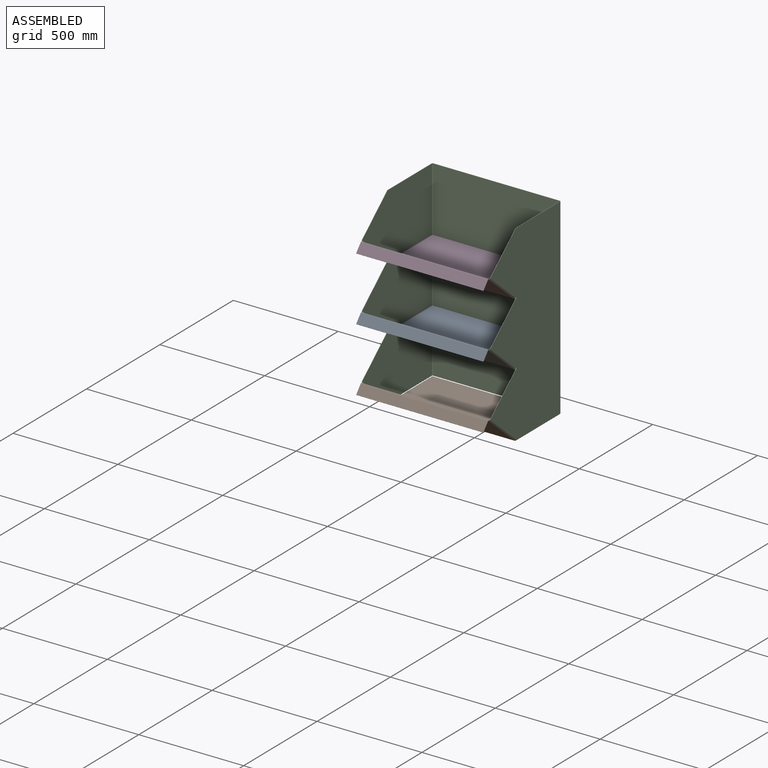
[diagram: assembled view]
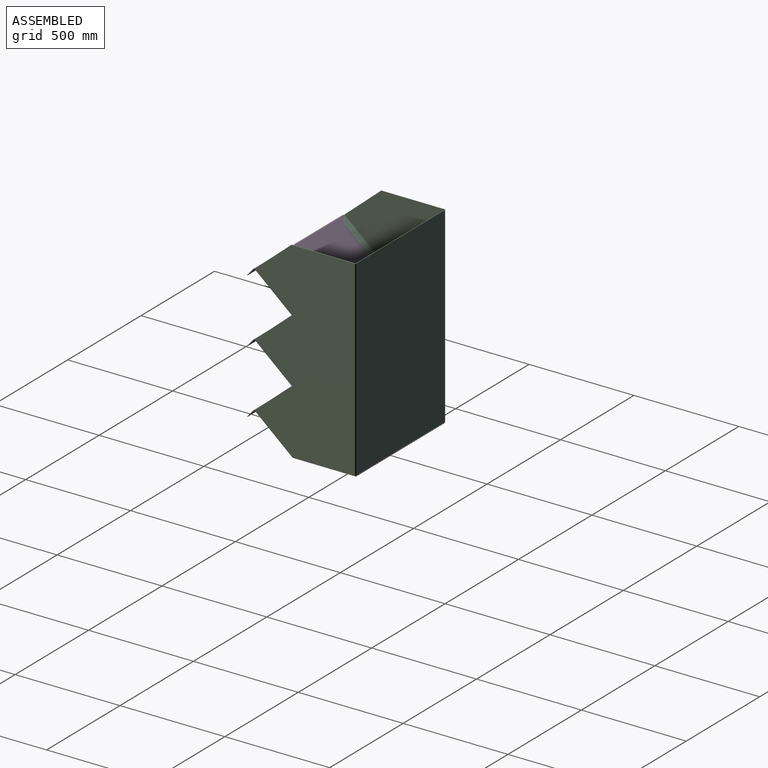
[diagram: assembled view, second angle]
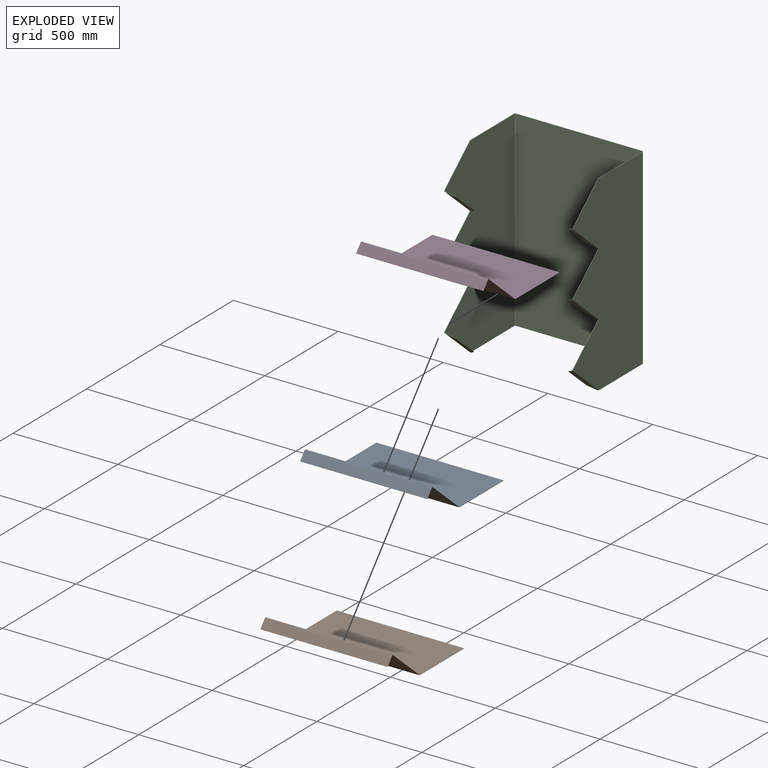
[diagram: exploded view]
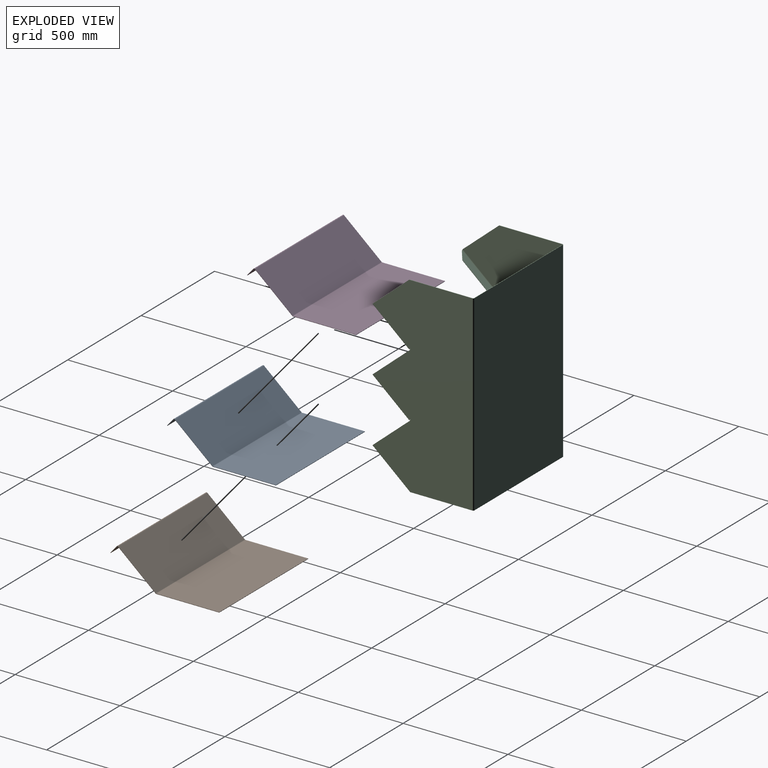
[diagram: exploded view, second angle]
ASSEMBLY  parts=4 mates=9
PART A: 22 faces, bbox 606.4x519.6x157.5 mm
  f0: plane 299.86x1.9mm, normal (-1,0,0), area 568.9mm2, adj f2,f3,f4,f19
  f1: plane 299.86x1.9mm, normal (1,0,0), area 568.9mm2, adj f2,f3,f4,f18
  f2: plane 606.43x1.9mm, normal (0,1,0), area 1150.6mm2, adj f0,f1,f3,f4
  f3: plane 606.43x299.86mm, normal (0,0,1), area 181840mm2, adj f0,f1,f2,f21
  f4: plane 606.43x299.86mm, normal (0,0,-1), area 181840mm2, adj f0,f1,f2,f20
  f5: plane 180.2x154.84mm, normal (-1,0,0), area 447.2mm2, adj f7,f8,f15,f19
  f6: plane 180.2x154.84mm, normal (1,0,0), area 447.2mm2, adj f7,f8,f14,f18
  f7: plane 606.43x178.96mm, normal (0,0.65,0.76), area 142937.4mm2, adj f5,f6,f16,f21
  f8: plane 606.43x178.96mm, normal (0,-0.65,-0.76), area 142937.4mm2, adj f5,f6,f17,f20
  f9: plane 37.09x32.18mm, normal (-1,0,0), area 89.6mm2, adj f10,f12,f13,f15
  f10: plane 606.43x1.44mm, normal (0,-0.65,-0.76), area 1150.6mm2, adj f9,f11,f12,f13
  f11: plane 37.09x32.18mm, normal (1,0,0), area 89.6mm2, adj f10,f12,f13,f14
  f12: plane 606.43x35.86mm, normal (0,-0.76,0.65), area 28640.3mm2, adj f9,f10,f11,f16
  f13: plane 606.43x35.86mm, normal (0,0.76,-0.65), area 28640.3mm2, adj f9,f10,f11,f17
  f14: plane 7.71x3.14mm, normal (1,0,0), area 13.5mm2, adj f6,f11,f16,f17
  f15: plane 7.71x3.14mm, normal (-1,0,0), area 13.5mm2, adj f5,f9,f16,f17
  f16: cylinder r=5.47mm len=606.43mm, axis (1,0,0), area 5209.8mm2, adj f7,f12,f14,f15
  f17: cylinder r=3.57mm len=606.43mm, axis (1,0,0), area 3402.5mm2, adj f8,f13,f14,f15
  f18: plane 3.56x2.76mm, normal (1,0,0), area 6.1mm2, adj f1,f6,f20,f21
  f19: plane 3.56x2.76mm, normal (-1,0,0), area 6.1mm2, adj f0,f5,f20,f21
  f20: cylinder r=5.47mm len=606.43mm, axis (1,0,0), area 2350.3mm2, adj f4,f8,f18,f19
  f21: cylinder r=3.57mm len=606.43mm, axis (1,0,0), area 1534.9mm2, adj f3,f7,f18,f19
PART B: same geometry as A
PART C: 96 faces, bbox 613.4x483.9x918.6 mm
  f0: plane 602.46x1.9mm, normal (0,0,-1), area 1143.1mm2, adj f2,f3,f47,f93
  f1: plane 602.46x1.9mm, normal (0,0,1), area 1143.1mm2, adj f2,f3,f46,f92
  f2: plane 914.4x602.46mm, normal (0,1,0), area 550886mm2, adj f0,f1,f48,f94
  f3: plane 914.4x602.46mm, normal (0,-1,0), area 550886mm2, adj f0,f1,f49,f95
  f4: plane 1.9x1.6mm, normal (0,-0.65,-0.76), area 4mm2, adj f6,f7,f10,f18
  f5: plane 1.9x1.6mm, normal (0,-0.65,-0.76), area 4mm2, adj f6,f7,f11,f15
  f6: plane 914.4x474.83mm, normal (-1,0,0), area 352865.3mm2, adj f4,f5,f8,f9,f10,f11,f12,f13
  f7: plane 914.4x474.83mm, normal (1,0,0), area 352865.3mm2, adj f4,f5,f8,f9,f10,f11,f12,f13
  f8: plane 301.23x1.9mm, normal (0,0,1), area 571.5mm2, adj f6,f7,f12,f46
  f9: plane 292.82x1.9mm, normal (0,0,-1), area 555.6mm2, adj f6,f7,f42,f47
  f10: plane 177.8x152.4mm, normal (0,-0.65,0.76), area 444.3mm2, adj f4,f6,f7,f43
  f11: plane 177.8x152.4mm, normal (0,-0.65,0.76), area 444.3mm2, adj f5,f6,f7,f34
  f12: plane 173.6x148.8mm, normal (0,-0.65,0.76), area 433.8mm2, adj f6,f7,f8,f25
  f13: plane 1.9x1.36mm, normal (0,0.76,-0.65), area 3.4mm2, adj f6,f7,f14,f24
  f14: cylinder r=1.01mm len=1.9mm, axis (1,0,0), area 6mm2, adj f6,f7,f13,f15
  f15: plane 1.9x1.36mm, normal (0,-0.76,0.65), area 3.4mm2, adj f5,f6,f7,f14
  f16: plane 1.9x1.36mm, normal (0,0.76,-0.65), area 3.4mm2, adj f6,f7,f17,f33
  f17: cylinder r=1.01mm len=1.9mm, axis (1,0,0), area 6mm2, adj f6,f7,f16,f18
  f18: plane 1.9x1.36mm, normal (0,-0.76,0.65), area 3.4mm2, adj f4,f6,f7,f17
  f19: plane 124.06x106.72mm, normal (1,0,0), area 306.9mm2, adj f20,f21,f22,f23
  f20: plane 32.63x26.01mm, normal (0.71,-0.54,0.46), area 87.6mm2, adj f19,f22,f23,f25
  f21: plane 32.63x26.01mm, normal (0.71,0.54,-0.46), area 87.6mm2, adj f19,f22,f23,f24
  f22: plane 172.38x147.75mm, normal (0,-0.65,-0.76), area 6343.5mm2, adj f19,f20,f21,f26
  f23: plane 172.38x147.75mm, normal (0,0.65,0.76), area 6343.5mm2, adj f19,f20,f21,f27
  f24: plane 5.47x4.15mm, normal (0,0.76,-0.65), area 13.5mm2, adj f13,f21,f26,f27
  f25: bspline ~6.12x5.47mm, area 15.1mm2, adj f12,f20,f26,f27
  f26: cylinder r=5.47mm len=178.26mm, axis (0,0.76,-0.65), area 1968.3mm2, adj f6,f22,f24,f25
  f27: cylinder r=3.57mm len=177.03mm, axis (0,0.76,-0.65), area 1285.4mm2, adj f7,f23,f24,f25
  f28: plane 124.06x106.72mm, normal (1,0,0), area 306.9mm2, adj f29,f30,f31,f32
  f29: plane 32.63x26.01mm, normal (0.71,-0.54,0.46), area 87.6mm2, adj f28,f31,f32,f34
  f30: plane 32.63x26.01mm, normal (0.71,0.54,-0.46), area 87.6mm2, adj f28,f31,f32,f33
  f31: plane 172.38x147.75mm, normal (0,-0.65,-0.76), area 6343.5mm2, adj f28,f29,f30,f35
  f32: plane 172.38x147.75mm, normal (0,0.65,0.76), area 6343.5mm2, adj f28,f29,f30,f36
  f33: plane 5.47x4.15mm, normal (0,0.76,-0.65), area 13.5mm2, adj f16,f30,f35,f36
  f34: bspline ~6.12x5.47mm, area 15.1mm2, adj f11,f29,f35,f36
  f35: cylinder r=5.47mm len=178.26mm, axis (0,0.76,-0.65), area 1968.3mm2, adj f6,f31,f33,f34
  f36: cylinder r=3.57mm len=177.03mm, axis (0,0.76,-0.65), area 1285.4mm2, adj f7,f32,f33,f34
  f37: plane 125.52x107.97mm, normal (1,0,0), area 310.6mm2, adj f38,f39,f40,f41
  f38: plane 32.63x26.01mm, normal (0.71,-0.54,0.46), area 87.6mm2, adj f37,f40,f41,f43
  f39: plane 32.63x26.01mm, normal (0.71,0.54,-0.46), area 87.6mm2, adj f37,f40,f41,f42
  f40: plane 173.83x149mm, normal (0,-0.65,-0.76), area 6406.1mm2, adj f37,f38,f39,f44
  f41: plane 173.83x149mm, normal (0,0.65,0.76), area 6406.1mm2, adj f37,f38,f39,f45
  f42: bspline ~9.44x5.47mm, area 19.9mm2, adj f9,f39,f44,f45
  f43: bspline ~6.12x5.47mm, area 15.1mm2, adj f10,f38,f44,f45
  f44: cylinder r=5.47mm len=185.59mm, axis (0,0.76,-0.65), area 2018mm2, adj f6,f40,f42,f43
  f45: cylinder r=3.57mm len=184.36mm, axis (0,0.76,-0.65), area 1317.9mm2, adj f7,f41,f42,f43
  f46: plane 5.47x5.47mm, normal (0,0,1), area 13.5mm2, adj f1,f8,f48,f49
  f47: plane 5.47x5.47mm, normal (0,0,-1), area 13.5mm2, adj f0,f9,f48,f49
  f48: cylinder r=5.47mm len=914.4mm, axis (0,0,1), area 7855.7mm2, adj f2,f6,f46,f47
  f49: cylinder r=3.57mm len=914.4mm, axis (0,0,1), area 5130.4mm2, adj f3,f7,f46,f47
  f50: plane 1.9x1.6mm, normal (0,-0.65,-0.76), area 4mm2, adj f52,f53,f58,f60
  f51: plane 1.9x1.6mm, normal (0,-0.65,-0.76), area 4mm2, adj f52,f57,f58,f63
  f52: plane 914.4x474.83mm, normal (1,0,0), area 352865.3mm2, adj f50,f51,f53,f54,f55,f56,f57,f59
  f53: plane 177.8x152.4mm, normal (0,-0.65,0.76), area 444.3mm2, adj f50,f52,f58,f89
  f54: plane 292.82x1.9mm, normal (0,0,-1), area 555.6mm2, adj f52,f58,f88,f93
  f55: plane 301.23x1.9mm, normal (0,0,1), area 571.5mm2, adj f52,f56,f58,f92
  f56: plane 173.6x148.8mm, normal (0,-0.65,0.76), area 433.8mm2, adj f52,f55,f58,f80
  f57: plane 177.8x152.4mm, normal (0,-0.65,0.76), area 444.3mm2, adj f51,f52,f58,f71
  f58: plane 914.4x474.83mm, normal (-1,0,0), area 352865.3mm2, adj f50,f51,f53,f54,f55,f56,f57,f59
  f59: cylinder r=1.01mm len=1.9mm, axis (-1,0,0), area 6mm2, adj f52,f58,f60,f61
  f60: plane 1.9x1.36mm, normal (0,-0.76,0.65), area 3.4mm2, adj f50,f52,f58,f59
  f61: plane 1.9x1.36mm, normal (0,0.76,-0.65), area 3.4mm2, adj f52,f58,f59,f70
  f62: cylinder r=1.01mm len=1.9mm, axis (-1,0,0), area 6mm2, adj f52,f58,f63,f64
  f63: plane 1.9x1.36mm, normal (0,-0.76,0.65), area 3.4mm2, adj f51,f52,f58,f62
  f64: plane 1.9x1.36mm, normal (0,0.76,-0.65), area 3.4mm2, adj f52,f58,f62,f79
  f65: plane 124.06x106.72mm, normal (-1,0,0), area 306.9mm2, adj f66,f67,f68,f69
  f66: plane 32.63x26.01mm, normal (-0.71,0.54,-0.46), area 87.6mm2, adj f65,f68,f69,f70
  f67: plane 32.63x26.01mm, normal (-0.71,-0.54,0.46), area 87.6mm2, adj f65,f68,f69,f71
  f68: plane 172.38x147.75mm, normal (0,-0.65,-0.76), area 6343.5mm2, adj f65,f66,f67,f72
  f69: plane 172.38x147.75mm, normal (0,0.65,0.76), area 6343.5mm2, adj f65,f66,f67,f73
  f70: plane 5.47x4.15mm, normal (0,0.76,-0.65), area 13.5mm2, adj f61,f66,f72,f73
  f71: bspline ~6.12x5.47mm, area 15.1mm2, adj f57,f67,f72,f73
  f72: cylinder r=5.47mm len=178.26mm, axis (0,0.76,-0.65), area 1968.3mm2, adj f52,f68,f70,f71
  f73: cylinder r=3.57mm len=177.03mm, axis (0,0.76,-0.65), area 1285.5mm2, adj f58,f69,f70,f71
  f74: plane 124.06x106.72mm, normal (-1,0,0), area 306.9mm2, adj f75,f76,f77,f78
  f75: plane 32.63x26.01mm, normal (-0.71,0.54,-0.46), area 87.6mm2, adj f74,f77,f78,f79
  f76: plane 32.63x26.01mm, normal (-0.71,-0.54,0.46), area 87.6mm2, adj f74,f77,f78,f80
  f77: plane 172.38x147.75mm, normal (0,-0.65,-0.76), area 6343.5mm2, adj f74,f75,f76,f81
  f78: plane 172.38x147.75mm, normal (0,0.65,0.76), area 6343.5mm2, adj f74,f75,f76,f82
  f79: plane 5.47x4.15mm, normal (0,0.76,-0.65), area 13.5mm2, adj f64,f75,f81,f82
  f80: bspline ~6.12x5.47mm, area 15.1mm2, adj f56,f76,f81,f82
  f81: cylinder r=5.47mm len=178.26mm, axis (0,0.76,-0.65), area 1968.3mm2, adj f52,f77,f79,f80
  f82: cylinder r=3.57mm len=177.03mm, axis (0,0.76,-0.65), area 1285.5mm2, adj f58,f78,f79,f80
  f83: plane 125.52x107.97mm, normal (-1,0,0), area 310.6mm2, adj f84,f85,f86,f87
  f84: plane 32.63x26.01mm, normal (-0.71,0.54,-0.46), area 87.6mm2, adj f83,f86,f87,f88
  f85: plane 32.63x26.01mm, normal (-0.71,-0.54,0.46), area 87.6mm2, adj f83,f86,f87,f89
  f86: plane 173.83x149mm, normal (0,-0.65,-0.76), area 6406.1mm2, adj f83,f84,f85,f90
  f87: plane 173.83x149mm, normal (0,0.65,0.76), area 6406.1mm2, adj f83,f84,f85,f91
  f88: bspline ~9.44x5.47mm, area 20mm2, adj f54,f84,f90,f91
  f89: bspline ~6.12x5.47mm, area 15.1mm2, adj f53,f85,f90,f91
  f90: cylinder r=5.47mm len=185.59mm, axis (0,0.76,-0.65), area 2018mm2, adj f52,f86,f88,f89
  f91: cylinder r=3.57mm len=184.36mm, axis (0,0.76,-0.65), area 1317.9mm2, adj f58,f87,f88,f89
  f92: plane 5.47x5.47mm, normal (0,0,1), area 13.5mm2, adj f1,f55,f94,f95
  f93: plane 5.47x5.47mm, normal (0,0,-1), area 13.5mm2, adj f0,f54,f94,f95
  f94: cylinder r=5.47mm len=914.4mm, axis (0,0,1), area 7855.7mm2, adj f2,f52,f92,f93
  f95: cylinder r=3.57mm len=914.4mm, axis (0,0,1), area 5130.4mm2, adj f3,f58,f92,f93
PART D: same geometry as A
PLACE A t=(303.21,0,299.8)mm
PLACE B t=(303.21,0,-5)mm
PLACE C at identity fixed
PLACE D t=(303.21,0,604.6)mm
MATE planar D.f5 <-> C.f7  axis (-1,0,0) through (0,-392.28,683.33)mm
MATE planar B.f0 <-> C.f7  axis (-1,0,0) through (0,-149.93,-4.05)mm
MATE planar B.f2 <-> C.f3  axis (0,1,0) through (303.21,0,-4.05)mm
MATE planar D.f2 <-> C.f3  axis (0,1,0) through (303.21,0,605.55)mm
MATE planar C.f68 <-> A.f7  axis (0,-0.65,-0.76) through (590.63,-393.48,380.81)mm
MATE planar B.f7 <-> C.f40  axis (0,0.65,0.76) through (303.21,-391.66,74.45)mm
MATE planar A.f2 <-> C.f3  axis (0,1,0) through (303.21,0,300.75)mm
MATE planar A.f0 <-> C.f7  axis (-1,0,0) through (0,-149.93,300.75)mm
MATE planar D.f7 <-> C.f22  axis (0,0.65,0.76) through (303.21,-391.66,684.05)mm
